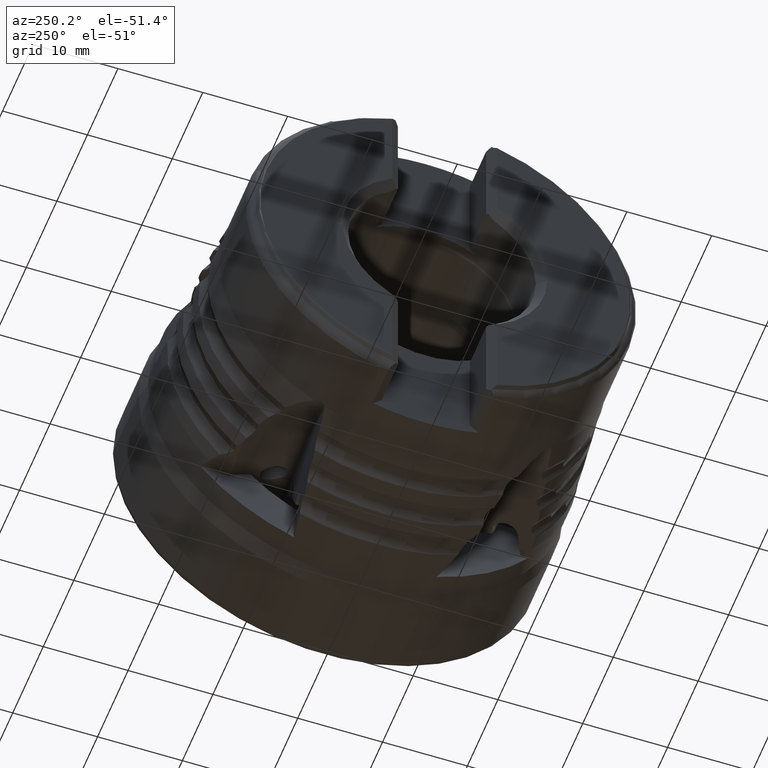
[diagram: clean part render]
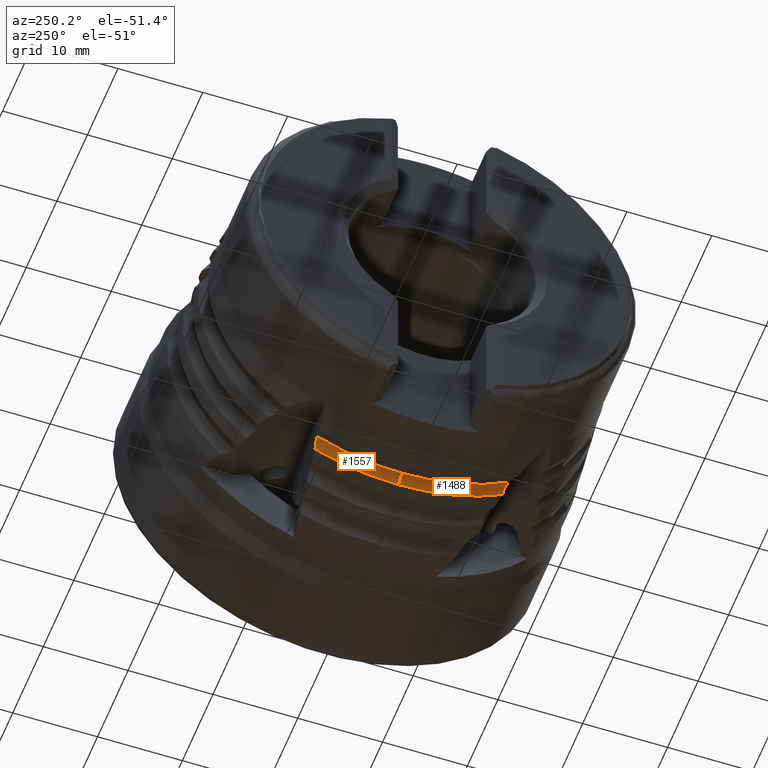
[diagram: same view with one multi-face feature highlighted, each face labeled with its STEP entity id]
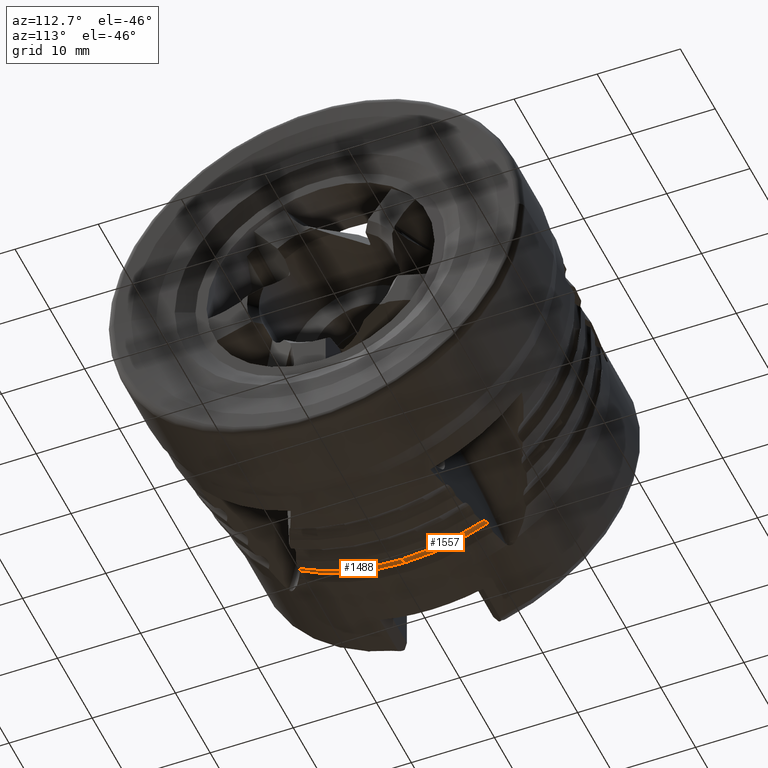
[diagram: same view with one multi-face feature highlighted, each face labeled with its STEP entity id]
A machine part, auxiliary view. The highlighted faces form ONE feature: a constant-radius fillet chain: 2 tangent blend faces with common blend radius 1.5 mm. The faces share edges in the B-rep.
A second angle (auxiliary view) of the same feature is appended — it is thin or edge-on in the first view.
Their STEP definitions:
[1] entity #1557 (Torus):
#1557 = ADVANCED_FACE ( 'NONE', ( #7870 ), #7874, .F. ) ;
#2264 = AXIS2_PLACEMENT_3D ( 'NONE', #8317, #8319, #8320 ) ;
#2273 = AXIS2_PLACEMENT_3D ( 'NONE', #8429, #8430, #8431 ) ;
#2292 = AXIS2_PLACEMENT_3D ( 'NONE', #8604, #8606, #8607 ) ;
#2772 = AXIS2_PLACEMENT_3D ( 'NONE', #11372, #11410, #11329 ) ;
#4622 = EDGE_CURVE ( 'NONE', #12215, #11704, #10354, .T. ) ;
#4627 = EDGE_CURVE ( 'NONE', #11807, #11704, #12482, .T. ) ;
#4641 = EDGE_CURVE ( 'NONE', #11724, #12215, #10363, .T. ) ;
#4687 = EDGE_CURVE ( 'NONE', #11724, #11807, #10405, .T. ) ;
#7631 = EDGE_LOOP ( 'NONE', ( #11141, #11132, #11153, #11142 ) ) ;
#7870 = FACE_OUTER_BOUND ( 'NONE', #7631, .T. ) ;
#7874 = TOROIDAL_SURFACE ( 'NONE', #2772, 24.38102560324198400, 1.500000000000000400 ) ;
#8317 = CARTESIAN_POINT ( 'NONE',  ( -24.19473253947989700, 0.0000000000000000000, 0.0000000000000000000 ) ) ;
#8319 = DIRECTION ( 'NONE',  ( 1.000000000000000000, -0.0000000000000000000, -0.0000000000000000000 ) ) ;
#8320 = DIRECTION ( 'NONE',  ( 0.0000000000000000000, 0.0000000000000000000, -1.000000000000000000 ) ) ;
#8327 = CARTESIAN_POINT ( 'NONE',  ( -22.99010624873792400, 9.851380201806335900, -21.32135436419045100 ) ) ;
#8339 = CARTESIAN_POINT ( 'NONE',  ( -23.05751196744107300, 9.860853457776592300, -21.21690210792877800 ) ) ;
#8340 = CARTESIAN_POINT ( 'NONE',  ( -23.13428233021315400, 9.871642828640986500, -21.12109811755097900 ) ) ;
#8341 = CARTESIAN_POINT ( 'NONE',  ( -23.30673518930134600, 9.895879497404052900, -20.94695552662934200 ) ) ;
#8342 = CARTESIAN_POINT ( 'NONE',  ( -23.40380791719046600, 9.909522179608428500, -20.86791067197530900 ) ) ;
#8343 = CARTESIAN_POINT ( 'NONE',  ( -23.60993474818299000, 9.938491416490679200, -20.73623816763983300 ) ) ;
#8344 = CARTESIAN_POINT ( 'NONE',  ( -23.71935160823584400, 9.953868953333021400, -20.68273210136279900 ) ) ;
#8345 = CARTESIAN_POINT ( 'NONE',  ( -23.95232608540413500, 9.986611380818606800, -20.60316306076681400 ) ) ;
#8346 = CARTESIAN_POINT ( 'NONE',  ( -24.07334787728595100, 10.00361988446685800, -20.57836927345280000 ) ) ;
#8347 = CARTESIAN_POINT ( 'NONE',  ( -24.19473253947989700, 10.02067938621166300, -20.57005875769361600 ) ) ;
#8429 = CARTESIAN_POINT ( 'NONE',  ( -24.19473253947989700, 0.0000000000000000000, -24.38102560324198400 ) ) ;
#8430 = DIRECTION ( 'NONE',  ( -0.0000000000000000000, -1.000000000000000000, -0.0000000000000000000 ) ) ;
#8431 = DIRECTION ( 'NONE',  ( 0.0000000000000000000, 0.0000000000000000000, -1.000000000000000000 ) ) ;
#8604 = CARTESIAN_POINT ( 'NONE',  ( -22.99010624873793100, 0.0000000000000000000, 0.0000000000000000000 ) ) ;
#8606 = DIRECTION ( 'NONE',  ( 1.000000000000000000, -0.0000000000000000000, -0.0000000000000000000 ) ) ;
#8607 = DIRECTION ( 'NONE',  ( 0.0000000000000000000, 0.0000000000000000000, -1.000000000000000000 ) ) ;
#9363 = CARTESIAN_POINT ( 'NONE',  ( -24.19473253947989700, 10.02067938621166300, -20.57005875769361600 ) ) ;
#9380 = CARTESIAN_POINT ( 'NONE',  ( -22.99010624873793100, 0.0000000000000000000, -23.48722724810070900 ) ) ;
#9451 = CARTESIAN_POINT ( 'NONE',  ( -22.99010624873792400, 9.851380201806335900, -21.32135436419045100 ) ) ;
#10354 = CIRCLE ( 'NONE', #2264, 22.88102560324198400 ) ;
#10363 = CIRCLE ( 'NONE', #2273, 1.500000000000001300 ) ;
#10405 = CIRCLE ( 'NONE', #2292, 23.48722724810070900 ) ;
#10765 = CARTESIAN_POINT ( 'NONE',  ( -24.19473253947989700, 0.0000000000000000000, -22.88102560324198400 ) ) ;
#11132 = ORIENTED_EDGE ( 'NONE', *, *, #4622, .T. ) ;
#11141 = ORIENTED_EDGE ( 'NONE', *, *, #4641, .T. ) ;
#11142 = ORIENTED_EDGE ( 'NONE', *, *, #4687, .F. ) ;
#11153 = ORIENTED_EDGE ( 'NONE', *, *, #4627, .F. ) ;
#11329 = DIRECTION ( 'NONE',  ( 0.0000000000000000000, 0.0000000000000000000, -1.000000000000000000 ) ) ;
#11372 = CARTESIAN_POINT ( 'NONE',  ( -24.19473253947989700, 0.0000000000000000000, 0.0000000000000000000 ) ) ;
#11410 = DIRECTION ( 'NONE',  ( 1.000000000000000000, -0.0000000000000000000, -0.0000000000000000000 ) ) ;
#11704 = VERTEX_POINT ( 'NONE', #9363 ) ;
#11724 = VERTEX_POINT ( 'NONE', #9380 ) ;
#11807 = VERTEX_POINT ( 'NONE', #9451 ) ;
#12215 = VERTEX_POINT ( 'NONE', #10765 ) ;
#12482 = B_SPLINE_CURVE_WITH_KNOTS ( 'NONE', 3,
 ( #8327, #8339, #8340, #8341, #8342, #8343, #8344, #8345, #8346, #8347 ),
 .UNSPECIFIED., .F., .F.,
 ( 4, 2, 2, 2, 4 ),
 ( 3.650541190027653700E-007, 0.0003694146916613183700, 0.0007384643292036339500, 0.001107513966745949400, 0.001476563604288265000 ),
 .UNSPECIFIED. ) ;
[2] entity #1488 (Torus):
#1488 = ADVANCED_FACE ( 'NONE', ( #7732 ), #7739, .F. ) ;
#2118 = AXIS2_PLACEMENT_3D ( 'NONE', #5083, #5088, #5089 ) ;
#2273 = AXIS2_PLACEMENT_3D ( 'NONE', #8429, #8430, #8431 ) ;
#2274 = AXIS2_PLACEMENT_3D ( 'NONE', #8438, #8444, #8445 ) ;
#2554 = EDGE_CURVE ( 'NONE', #12191, #11724, #9840, .T. ) ;
#2693 = AXIS2_PLACEMENT_3D ( 'NONE', #11836, #11889, #11839 ) ;
#4641 = EDGE_CURVE ( 'NONE', #11724, #12215, #10363, .T. ) ;
#4646 = EDGE_CURVE ( 'NONE', #12201, #12215, #10368, .T. ) ;
#4656 = EDGE_CURVE ( 'NONE', #12191, #12201, #12498, .T. ) ;
#5083 = CARTESIAN_POINT ( 'NONE',  ( -22.99010624873793100, 0.0000000000000000000, 0.0000000000000000000 ) ) ;
#5088 = DIRECTION ( 'NONE',  ( 1.000000000000000000, -0.0000000000000000000, -0.0000000000000000000 ) ) ;
#5089 = DIRECTION ( 'NONE',  ( 0.0000000000000000000, 0.0000000000000000000, -1.000000000000000000 ) ) ;
#7630 = EDGE_LOOP ( 'NONE', ( #11098, #13209, #11128, #11157 ) ) ;
#7732 = FACE_OUTER_BOUND ( 'NONE', #7630, .T. ) ;
#7739 = TOROIDAL_SURFACE ( 'NONE', #2693, 24.38102560324198400, 1.500000000000000400 ) ;
#8429 = CARTESIAN_POINT ( 'NONE',  ( -24.19473253947989700, 0.0000000000000000000, -24.38102560324198400 ) ) ;
#8430 = DIRECTION ( 'NONE',  ( -0.0000000000000000000, -1.000000000000000000, -0.0000000000000000000 ) ) ;
#8431 = DIRECTION ( 'NONE',  ( 0.0000000000000000000, 0.0000000000000000000, -1.000000000000000000 ) ) ;
#8438 = CARTESIAN_POINT ( 'NONE',  ( -24.19473253947989700, 0.0000000000000000000, 0.0000000000000000000 ) ) ;
#8444 = DIRECTION ( 'NONE',  ( 1.000000000000000000, -0.0000000000000000000, -0.0000000000000000000 ) ) ;
#8445 = DIRECTION ( 'NONE',  ( 0.0000000000000000000, 0.0000000000000000000, -1.000000000000000000 ) ) ;
#8478 = CARTESIAN_POINT ( 'NONE',  ( -22.99010624873757500, -12.30788625084796100, -20.00414406667139700 ) ) ;
#8483 = CARTESIAN_POINT ( 'NONE',  ( -23.06319354758489100, -12.30046481031417500, -19.89305468397537200 ) ) ;
#8484 = CARTESIAN_POINT ( 'NONE',  ( -23.14535550463977000, -12.30272077437565400, -19.79060237043906100 ) ) ;
#8485 = CARTESIAN_POINT ( 'NONE',  ( -23.32545937176615100, -12.32382700836461200, -19.60070078628674800 ) ) ;
#8486 = CARTESIAN_POINT ( 'NONE',  ( -23.42456122329115000, -12.34306634525326300, -19.51258064226750500 ) ) ;
#8487 = CARTESIAN_POINT ( 'NONE',  ( -23.73412800909569900, -12.42205046027674000, -19.28014777783879900 ) ) ;
#8488 = CARTESIAN_POINT ( 'NONE',  ( -23.96291260896567400, -12.50434473891609800, -19.16239901011267900 ) ) ;
#8489 = CARTESIAN_POINT ( 'NONE',  ( -24.19473253946718200, -12.60601059281591100, -19.09528291463701100 ) ) ;
#9380 = CARTESIAN_POINT ( 'NONE',  ( -22.99010624873793100, 0.0000000000000000000, -23.48722724810070900 ) ) ;
#9840 = CIRCLE ( 'NONE', #2118, 23.48722724810070900 ) ;
#10363 = CIRCLE ( 'NONE', #2273, 1.500000000000001300 ) ;
#10368 = CIRCLE ( 'NONE', #2274, 22.88102560324198400 ) ;
#10744 = CARTESIAN_POINT ( 'NONE',  ( -22.99010624873757500, -12.30788625084796100, -20.00414406667139700 ) ) ;
#10753 = CARTESIAN_POINT ( 'NONE',  ( -24.19473253946718200, -12.60601059281591100, -19.09528291463701100 ) ) ;
#10765 = CARTESIAN_POINT ( 'NONE',  ( -24.19473253947989700, 0.0000000000000000000, -22.88102560324198400 ) ) ;
#11098 = ORIENTED_EDGE ( 'NONE', *, *, #4656, .T. ) ;
#11128 = ORIENTED_EDGE ( 'NONE', *, *, #4641, .F. ) ;
#11157 = ORIENTED_EDGE ( 'NONE', *, *, #2554, .F. ) ;
#11724 = VERTEX_POINT ( 'NONE', #9380 ) ;
#11836 = CARTESIAN_POINT ( 'NONE',  ( -24.19473253947989700, 0.0000000000000000000, 0.0000000000000000000 ) ) ;
#11839 = DIRECTION ( 'NONE',  ( 0.0000000000000000000, 0.0000000000000000000, -1.000000000000000000 ) ) ;
#11889 = DIRECTION ( 'NONE',  ( 1.000000000000000000, -0.0000000000000000000, -0.0000000000000000000 ) ) ;
#12191 = VERTEX_POINT ( 'NONE', #10744 ) ;
#12201 = VERTEX_POINT ( 'NONE', #10753 ) ;
#12215 = VERTEX_POINT ( 'NONE', #10765 ) ;
#12498 = B_SPLINE_CURVE_WITH_KNOTS ( 'NONE', 3,
 ( #8478, #8483, #8484, #8485, #8486, #8487, #8488, #8489 ),
 .UNSPECIFIED., .F., .F.,
 ( 4, 2, 2, 4 ),
 ( 0.0000000000000000000, 0.0003934129955852414700, 0.0007868259911704829300, 0.001573651982340958500 ),
 .UNSPECIFIED. ) ;
#13209 = ORIENTED_EDGE ( 'NONE', *, *, #4646, .T. ) ;